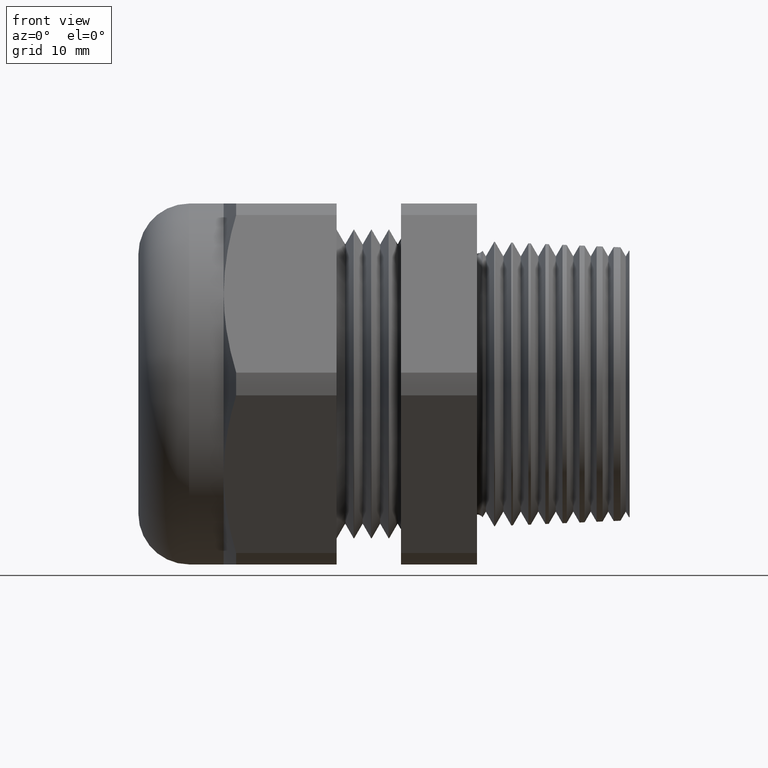
[diagram: clean part render]
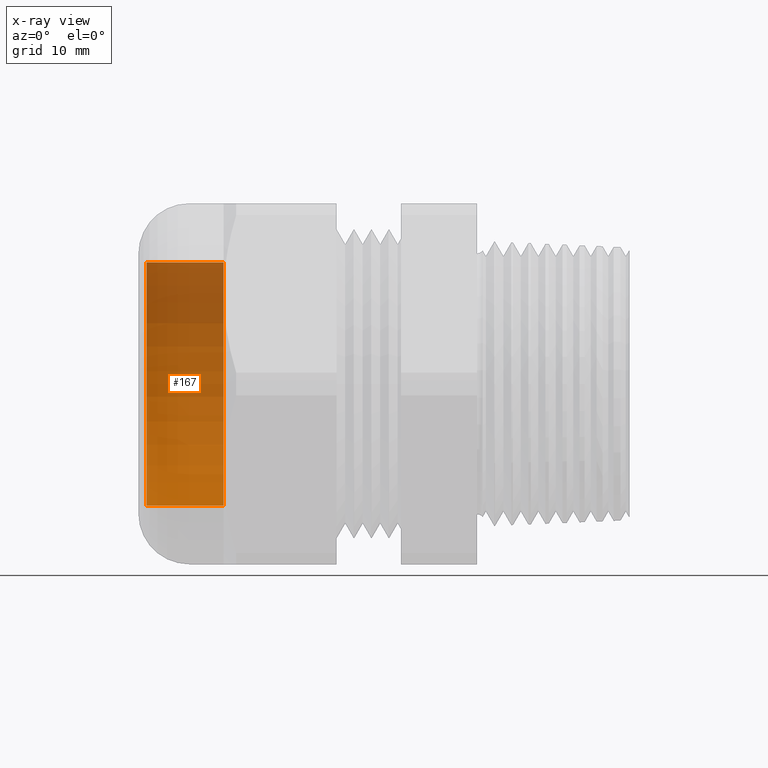
[diagram: x-ray — body ghosted, one internal face saturated and labeled with its STEP entity id]
A machine part, front view, then the same camera in x-ray: the body is ghosted and one INTERNAL B-rep face — a face not visible from any outside direction — is saturated and labeled: STEP entity #167.
In plain terms, the highlighted cylindrical surface (partial cylindrical patch) has radius 11.1188 mm, axis along (1, 0, 0).
Its self-contained STEP definition (entity closure, byte-faithful):
#167 = ADVANCED_FACE ( 'NONE', ( #1605 ), #1604, .T. ) ;
#168 = EDGE_LOOP ( 'NONE', ( #169, #170, #230, #233 ) ) ;
#169 = ORIENTED_EDGE ( 'NONE', *, *, #177, .T. ) ;
#170 = ORIENTED_EDGE ( 'NONE', *, *, #171, .T. ) ;
#171 = EDGE_CURVE ( 'NONE', #179, #172, #1661, .T. ) ;
#172 = VERTEX_POINT ( 'NONE', #1657 ) ;
#177 = EDGE_CURVE ( 'NONE', #178, #179, #1649, .T. ) ;
#178 = VERTEX_POINT ( 'NONE', #1645 ) ;
#179 = VERTEX_POINT ( 'NONE', #1644 ) ;
#230 = ORIENTED_EDGE ( 'NONE', *, *, #231, .F. ) ;
#231 = EDGE_CURVE ( 'NONE', #232, #172, #1741, .T. ) ;
#232 = VERTEX_POINT ( 'NONE', #1736 ) ;
#233 = ORIENTED_EDGE ( 'NONE', *, *, #234, .F. ) ;
#234 = EDGE_CURVE ( 'NONE', #178, #232, #1735, .T. ) ;
#1604 = CYLINDRICAL_SURFACE ( 'NONE', #1665, 0.4377499999999999700 ) ;
#1605 = FACE_OUTER_BOUND ( 'NONE', #168, .T. ) ;
#1644 = CARTESIAN_POINT ( 'NONE',  ( -1.189999999999999900, 5.360891363267538200E-017, 0.4377499999999999700 ) ) ;
#1645 = CARTESIAN_POINT ( 'NONE',  ( -1.189999999999999900, 0.0000000000000000000, -0.4377499999999999700 ) ) ;
#1646 = DIRECTION ( 'NONE',  ( 0.0000000000000000000, 0.0000000000000000000, 1.000000000000000000 ) ) ;
#1647 = DIRECTION ( 'NONE',  ( 1.000000000000000000, 0.0000000000000000000, 0.0000000000000000000 ) ) ;
#1648 = AXIS2_PLACEMENT_3D ( 'NONE', #1654, #1647, #1646 ) ;
#1649 = CIRCLE ( 'NONE', #1648, 0.4377499999999999700 ) ;
#1654 = CARTESIAN_POINT ( 'NONE',  ( -1.189999999999999900, 0.0000000000000000000, 0.0000000000000000000 ) ) ;
#1657 = CARTESIAN_POINT ( 'NONE',  ( -0.9125000000000003100, 5.360891363267538200E-017, 0.4377499999999999700 ) ) ;
#1658 = DIRECTION ( 'NONE',  ( 1.000000000000000000, 0.0000000000000000000, 0.0000000000000000000 ) ) ;
#1659 = VECTOR ( 'NONE', #1658, 39.37007874015748100 ) ;
#1660 = CARTESIAN_POINT ( 'NONE',  ( 0.3423310023310022200, 5.360891363267538200E-017, 0.4377499999999999700 ) ) ;
#1661 = LINE ( 'NONE', #1660, #1659 ) ;
#1662 = DIRECTION ( 'NONE',  ( 0.0000000000000000000, 0.0000000000000000000, -1.000000000000000000 ) ) ;
#1663 = DIRECTION ( 'NONE',  ( 1.000000000000000000, 0.0000000000000000000, 0.0000000000000000000 ) ) ;
#1664 = CARTESIAN_POINT ( 'NONE',  ( 0.3423310023310022200, 0.0000000000000000000, 0.0000000000000000000 ) ) ;
#1665 = AXIS2_PLACEMENT_3D ( 'NONE', #1664, #1663, #1662 ) ;
#1732 = DIRECTION ( 'NONE',  ( 1.000000000000000000, 0.0000000000000000000, 0.0000000000000000000 ) ) ;
#1733 = VECTOR ( 'NONE', #1732, 39.37007874015748100 ) ;
#1734 = CARTESIAN_POINT ( 'NONE',  ( 0.3423310023310022200, 0.0000000000000000000, -0.4377499999999999700 ) ) ;
#1735 = LINE ( 'NONE', #1734, #1733 ) ;
#1736 = CARTESIAN_POINT ( 'NONE',  ( -0.9125000000000003100, 0.0000000000000000000, -0.4377499999999999700 ) ) ;
#1737 = DIRECTION ( 'NONE',  ( 0.0000000000000000000, 0.0000000000000000000, -1.000000000000000000 ) ) ;
#1738 = DIRECTION ( 'NONE',  ( 1.000000000000000000, 0.0000000000000000000, 0.0000000000000000000 ) ) ;
#1739 = CARTESIAN_POINT ( 'NONE',  ( -0.9125000000000003100, 0.0000000000000000000, 0.0000000000000000000 ) ) ;
#1740 = AXIS2_PLACEMENT_3D ( 'NONE', #1739, #1738, #1737 ) ;
#1741 = CIRCLE ( 'NONE', #1740, 0.4377499999999999700 ) ;